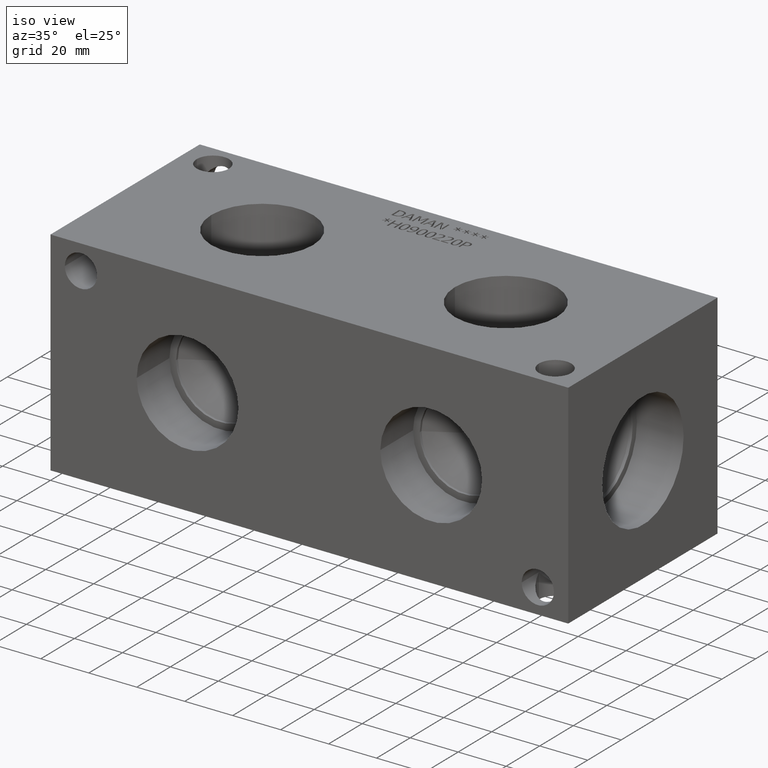
[diagram: clean part render]
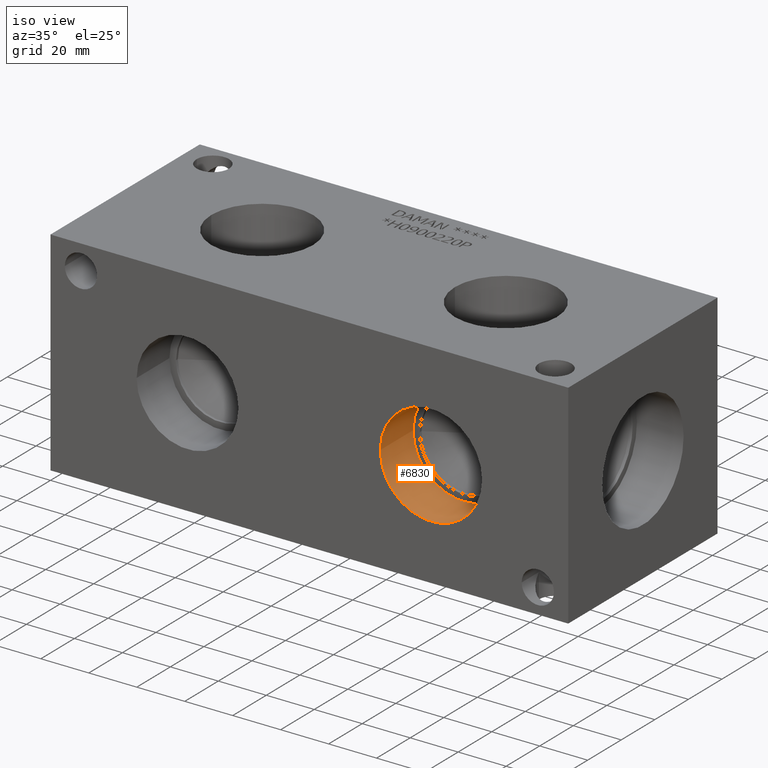
[diagram: same view with one face highlighted and labeled with its STEP entity id]
A machine part, iso view. The second image highlights one B-rep face of the part: STEP entity #6830.
In plain terms, the highlighted cylindrical surface (bore or boss wall) has radius 21.2344 mm, axis along (0, -1, 0).
Its self-contained STEP definition (entity closure, byte-faithful):
#28=CYLINDRICAL_SURFACE('',#7119,21.2344);
#79=CIRCLE('',#7116,21.2344);
#80=CIRCLE('',#7117,21.2344);
#82=CIRCLE('',#7120,21.2344);
#83=CIRCLE('',#7121,21.2344);
#787=FACE_OUTER_BOUND('',#1169,.T.);
#1169=EDGE_LOOP('',(#5859,#5860,#5861,#5862,#5863,#5864));
#1849=LINE('',#11630,#2517);
#2517=VECTOR('',#8325,21.2344);
#3140=VERTEX_POINT('',#11619);
#3141=VERTEX_POINT('',#11620);
#3143=VERTEX_POINT('',#11626);
#3144=VERTEX_POINT('',#11627);
#4058=EDGE_CURVE('',#3140,#3141,#79,.T.);
#4059=EDGE_CURVE('',#3141,#3140,#80,.T.);
#4061=EDGE_CURVE('',#3143,#3144,#82,.T.);
#4062=EDGE_CURVE('',#3144,#3143,#83,.T.);
#4063=EDGE_CURVE('',#3144,#3141,#1849,.T.);
#5859=ORIENTED_EDGE('',*,*,#4061,.F.);
#5860=ORIENTED_EDGE('',*,*,#4062,.F.);
#5861=ORIENTED_EDGE('',*,*,#4063,.T.);
#5862=ORIENTED_EDGE('',*,*,#4058,.F.);
#5863=ORIENTED_EDGE('',*,*,#4059,.F.);
#5864=ORIENTED_EDGE('',*,*,#4063,.F.);
#6830=ADVANCED_FACE('',(#787),#28,.F.);
#7116=AXIS2_PLACEMENT_3D('',#11621,#8313,#8314);
#7117=AXIS2_PLACEMENT_3D('',#11622,#8315,#8316);
#7119=AXIS2_PLACEMENT_3D('',#11625,#8319,#8320);
#7120=AXIS2_PLACEMENT_3D('',#11628,#8321,#8322);
#7121=AXIS2_PLACEMENT_3D('',#11629,#8323,#8324);
#8313=DIRECTION('center_axis',(0.,-1.,0.));
#8314=DIRECTION('ref_axis',(1.,0.,0.));
#8315=DIRECTION('center_axis',(0.,-1.,0.));
#8316=DIRECTION('ref_axis',(1.,0.,0.));
#8319=DIRECTION('center_axis',(0.,-1.,0.));
#8320=DIRECTION('ref_axis',(1.,0.,0.));
#8321=DIRECTION('center_axis',(0.,1.,0.));
#8322=DIRECTION('ref_axis',(1.,0.,0.));
#8323=DIRECTION('center_axis',(0.,1.,0.));
#8324=DIRECTION('ref_axis',(1.,0.,0.));
#8325=DIRECTION('',(0.,1.,0.));
#11619=CARTESIAN_POINT('',(179.9844,19.5072,44.45));
#11620=CARTESIAN_POINT('',(137.5156,19.5072,44.45));
#11621=CARTESIAN_POINT('Origin',(158.75,19.5072,44.45));
#11622=CARTESIAN_POINT('Origin',(158.75,19.5072,44.45));
#11625=CARTESIAN_POINT('Origin',(158.75,9.7536,44.45));
#11626=CARTESIAN_POINT('',(179.9844,0.,44.45));
#11627=CARTESIAN_POINT('',(137.5156,0.,44.45));
#11628=CARTESIAN_POINT('Origin',(158.75,0.,44.45));
#11629=CARTESIAN_POINT('Origin',(158.75,0.,44.45));
#11630=CARTESIAN_POINT('',(137.5156,9.7536,44.45));